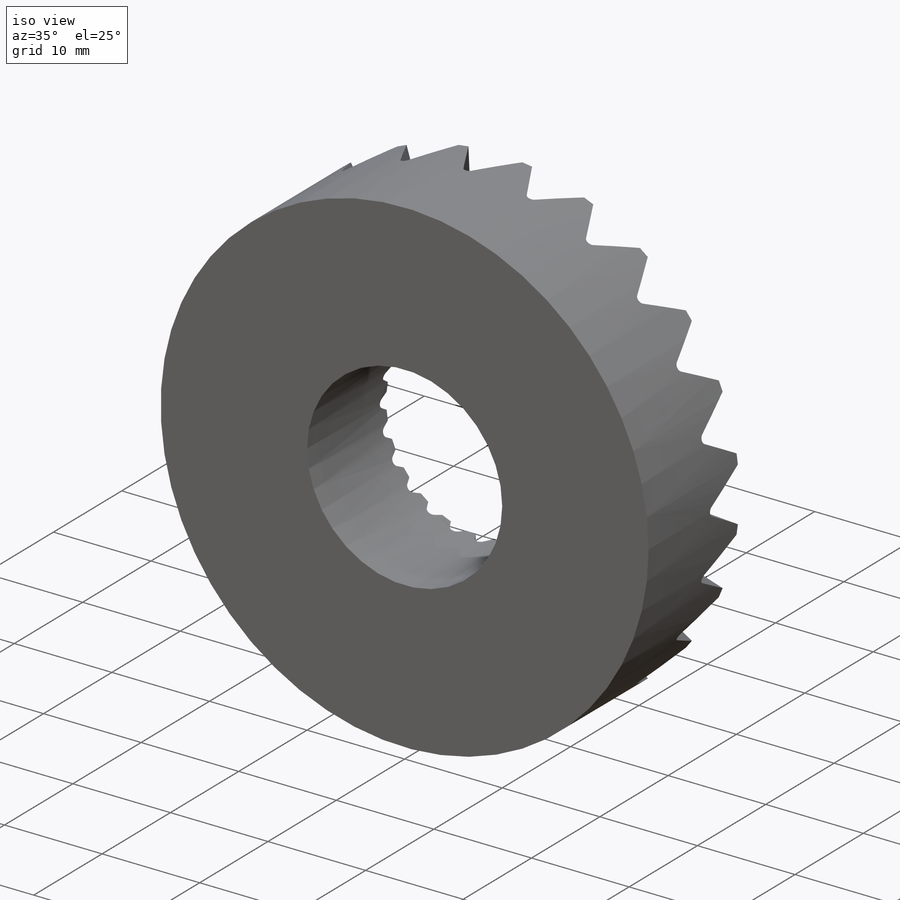
[diagram: iso view]
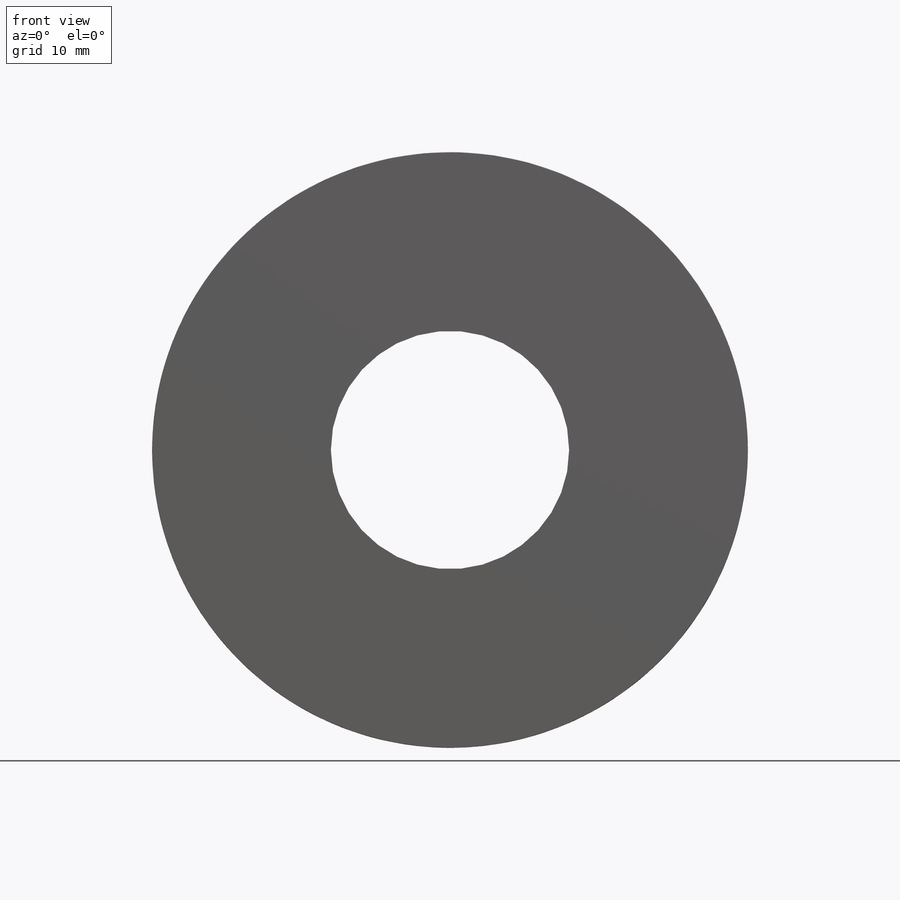
[diagram: front view]
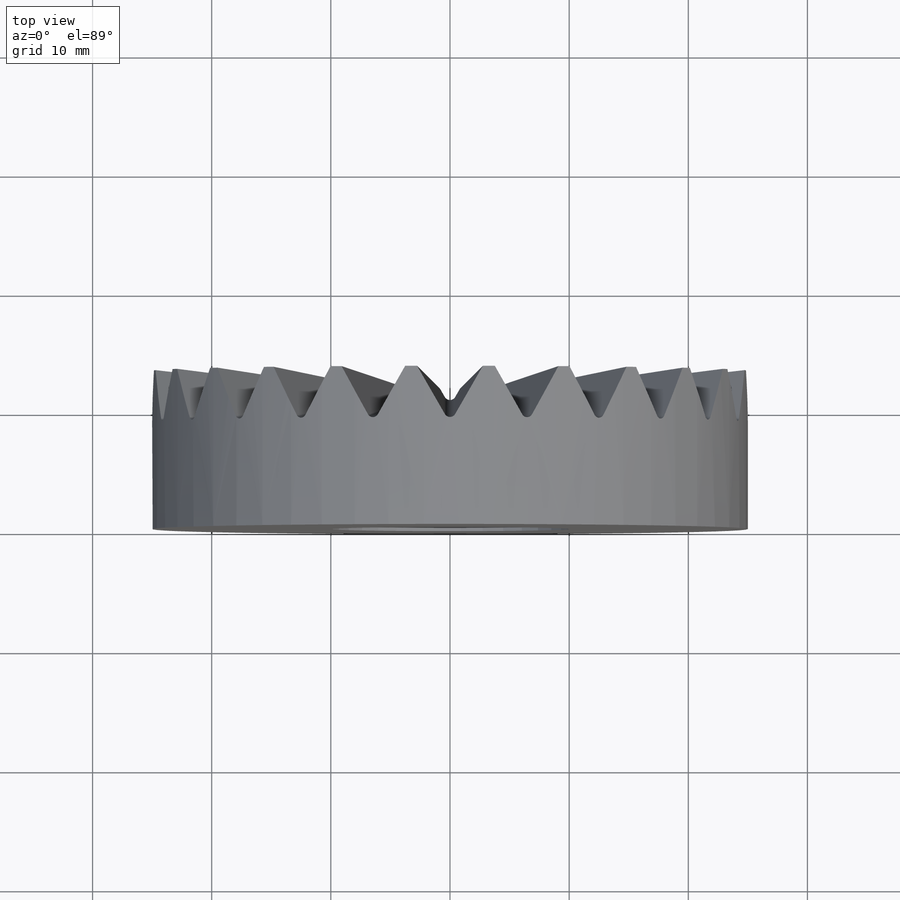
[diagram: top view]
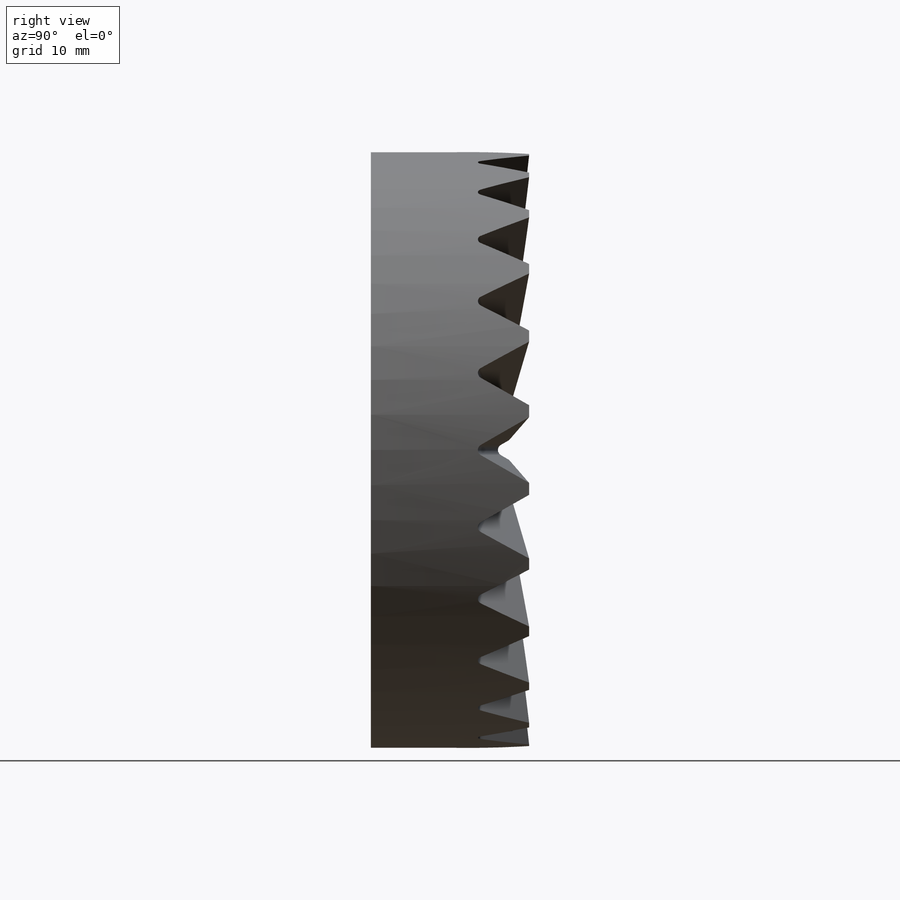
[diagram: right view]
SOLIDWORKS PART (.sldprt)
format: sldprt  version: not decoded by parser v0  size: 348,672 bytes
history: native  units: mm
features: sketch x6, plane x4, material x1, revolve x1, pattern_circular x1 (+8 scaffold rows collapsed)
feature tree (21):
  scaffold x8  (default folders/planes/origin — collapsed)
  material  "Material <nicht festgelegt>"
  plane  "Vorne"
  plane  "Oben"
  plane  "Rechts"
  sketch  "Skizze1"  dims[c1.D1=20.0mm c1.D2=50.0mm c1.D3=11.6mm c1.D4=~10.229078mm c2.D4=83.61deg]
  revolve  "Rotation1"  Angle=360deg
  sketch  "Skizze2"  dims[c1.D2=0.5mm c1.D3=0.5mm c2.D2=0.5mm c2.D1=~1.742466mm c3.D1=60.0deg c3.D3=3.0mm c4.D1=1.5mm c4.D2=~3.378795mm c5.D2=60.0deg c5.D4=~7.073222mm c5.D1=~4.78981mm c6.D1=60.0deg c6.D3=8.0mm c6.D4=1.5mm]
  plane  "Ebene1"
  sketch  "Skizze3"  dims[c1.D2=0.5mm c1.D3=0.5mm c1.D1=~3.358336mm c2.D1=60.0deg c2.D3=7.0mm c2.D4=12.0mm c3.D3=4.3mm]
  sketch  "3D-Skizze1"
  sketch  "3D-Skizze2"
  pattern_circular  "Kreismuster1"  Count=24 Angle=360deg
  sketch  "Skizze4"  dims[c1.D1=~26.422909mm c2.D1=~6.390495deg]
decode coverage: 6 of 8 modeling features carry decoded parameters
note: ~ marks probable driven/reference dimensions
note: suppression state not decoded; provenance and decode notes live in map.json
